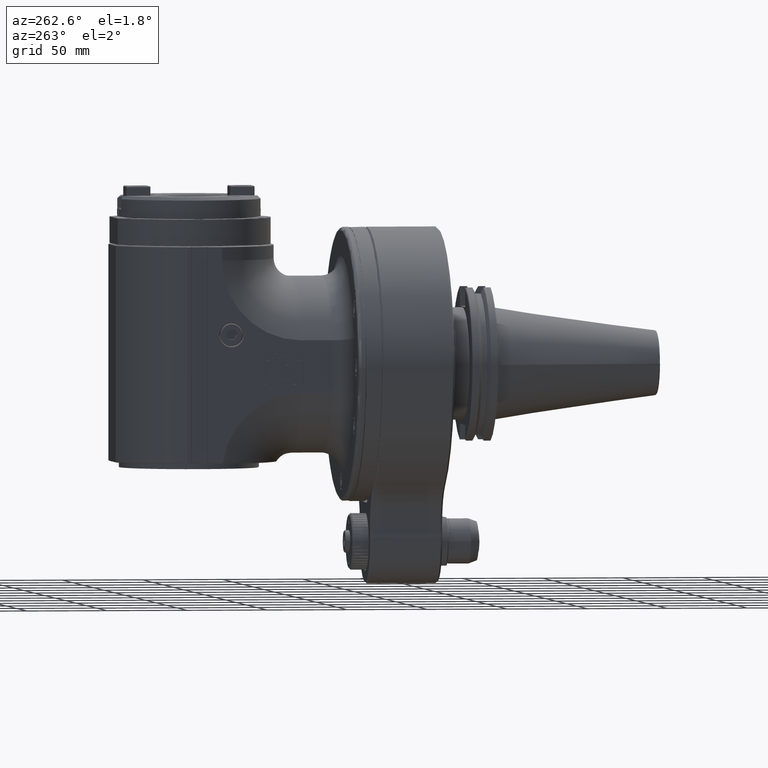
[diagram: clean part render]
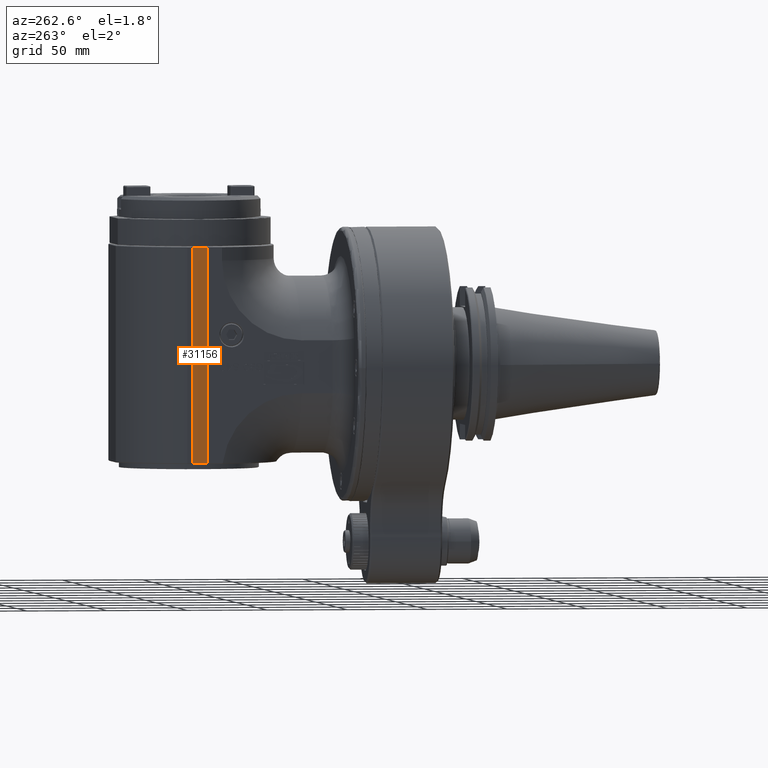
[diagram: same view with one face highlighted and labeled with its STEP entity id]
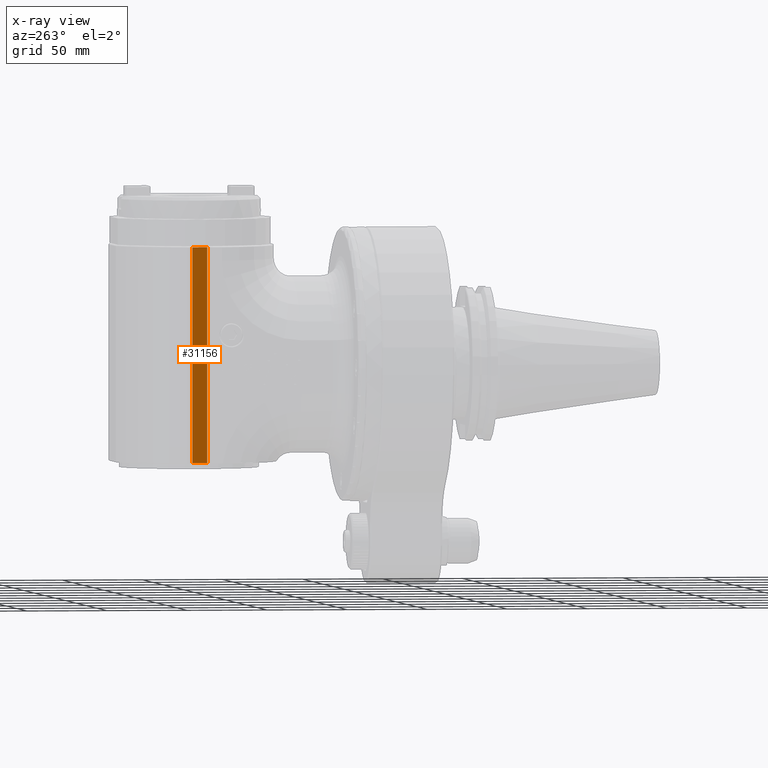
[diagram: x-ray of the same camera — body ghosted, the highlighted face saturated]
A machine part, auxiliary view. The second image highlights one B-rep face of the part: STEP entity #31156.
The next image is the same camera in x-ray: the body ghosted, the highlighted face saturated — about 0% of this face is hidden behind the body in this view.
In plain terms, the highlighted planar face has unit normal (1, 0, 0).
Its self-contained STEP definition (entity closure, byte-faithful):
#1316=LINE('',#49014,#4122);
#1324=LINE('',#49037,#4130);
#1710=LINE('',#51681,#4516);
#1711=LINE('',#51683,#4517);
#4122=VECTOR('',#37063,9.4);
#4130=VECTOR('',#37075,9.4);
#4516=VECTOR('',#37977,133.9);
#4517=VECTOR('',#37980,133.9);
#7744=FACE_OUTER_BOUND('',#9708,.T.);
#9708=EDGE_LOOP('',(#22477,#22478,#22479,#22480));
#13045=VERTEX_POINT('',#49011);
#13046=VERTEX_POINT('',#49013);
#13052=VERTEX_POINT('',#49034);
#13053=VERTEX_POINT('',#49036);
#16319=EDGE_CURVE('',#13045,#13046,#1316,.T.);
#16328=EDGE_CURVE('',#13052,#13053,#1324,.T.);
#16882=EDGE_CURVE('',#13045,#13053,#1710,.T.);
#16883=EDGE_CURVE('',#13046,#13052,#1711,.T.);
#22477=ORIENTED_EDGE('',*,*,#16328,.F.);
#22478=ORIENTED_EDGE('',*,*,#16883,.F.);
#22479=ORIENTED_EDGE('',*,*,#16319,.F.);
#22480=ORIENTED_EDGE('',*,*,#16882,.T.);
#29931=PLANE('',#33418);
#31156=ADVANCED_FACE('',(#7744),#29931,.F.);
#33418=AXIS2_PLACEMENT_3D('',#51682,#37978,#37979);
#37063=DIRECTION('',(0.,1.,0.));
#37075=DIRECTION('',(0.,-1.,0.));
#37977=DIRECTION('',(0.,0.,1.));
#37978=DIRECTION('center_axis',(1.,0.,0.));
#37979=DIRECTION('ref_axis',(0.,1.,0.));
#37980=DIRECTION('',(0.,0.,1.));
#49011=CARTESIAN_POINT('',(-52.4,105.3,-59.6));
#49013=CARTESIAN_POINT('',(-52.4,114.7,-59.6));
#49014=CARTESIAN_POINT('',(-52.4,105.3,-59.6));
#49034=CARTESIAN_POINT('',(-52.4,114.7,74.3));
#49036=CARTESIAN_POINT('',(-52.4,105.3,74.3));
#49037=CARTESIAN_POINT('',(-52.4,114.7,74.3));
#51681=CARTESIAN_POINT('',(-52.4,105.3,-59.6));
#51682=CARTESIAN_POINT('Origin',(-52.4,105.3,-102.));
#51683=CARTESIAN_POINT('',(-52.4,114.7,-59.6));